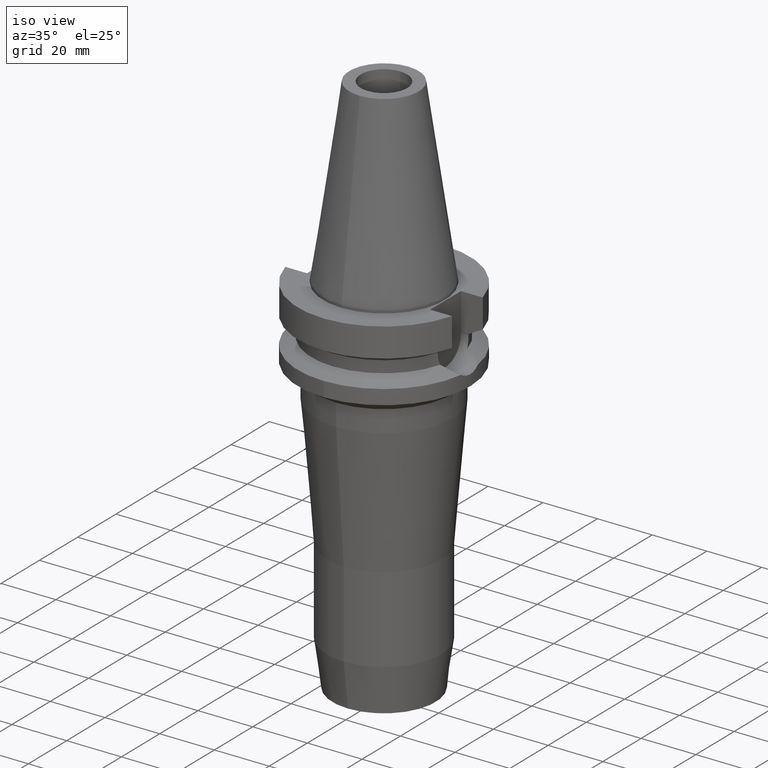
[diagram: clean part render]
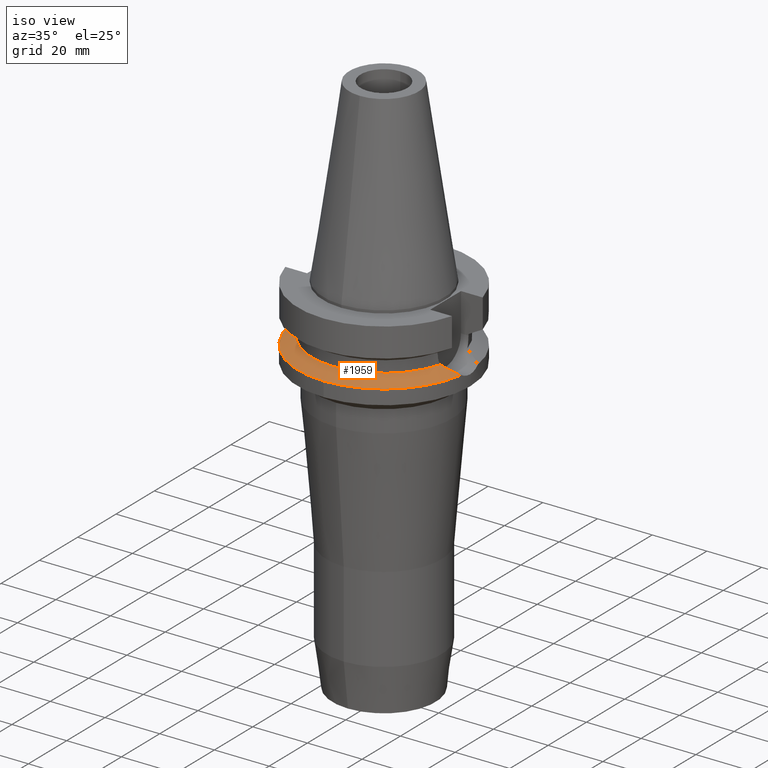
[diagram: same view with one face highlighted and labeled with its STEP entity id]
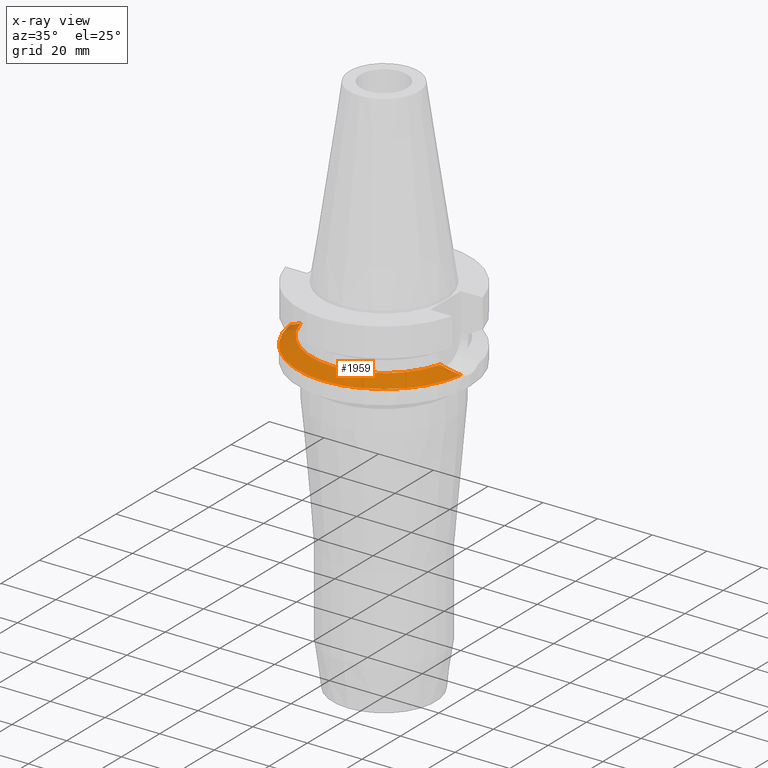
[diagram: x-ray of the same camera — body ghosted, the highlighted face saturated]
A machine part, iso view. The second image highlights one B-rep face of the part: STEP entity #1959.
The next image is the same camera in x-ray: the body ghosted, the highlighted face saturated — about 2% of this face is hidden behind the body in this view.
In plain terms, the highlighted conical surface has half-angle 60 deg.
Its self-contained STEP definition (entity closure, byte-faithful):
#614=CARTESIAN_POINT('',(3.117899877609E1,-4.485536235554E0,-2.163449434733E1));
#655=CARTESIAN_POINT('',(-3.117899877609E1,-4.485536235554E0,
-2.163449434733E1));
#656=CARTESIAN_POINT('',(-3.065533509123E1,-4.882823454226E0,
-2.136790032800E1));
#657=CARTESIAN_POINT('',(-2.952288629230E1,-5.594505613057E0,
-2.079091244787E1));
#658=CARTESIAN_POINT('',(-2.756007602918E1,-6.476150550726E0,
-1.978824243015E1));
#659=CARTESIAN_POINT('',(-2.621777781863E1,-6.909285433480E0,
-1.910018708431E1));
#660=CARTESIAN_POINT('',(-2.553175183775E1,-7.097862220093E0,
-1.874774300139E1));
#665=CARTESIAN_POINT('',(0.E0,0.E0,-1.874774300139E1));
#666=DIRECTION('',(0.E0,0.E0,1.E0));
#667=DIRECTION('',(-9.634623335001E-1,-2.678438573620E-1,0.E0));
#668=AXIS2_PLACEMENT_3D('',#665,#666,#667);
#673=CARTESIAN_POINT('',(0.E0,0.E0,-1.874774300139E1));
#674=DIRECTION('',(0.E0,0.E0,1.E0));
#675=DIRECTION('',(0.E0,-1.E0,0.E0));
#676=AXIS2_PLACEMENT_3D('',#673,#674,#675);
#681=CARTESIAN_POINT('',(2.553175183775E1,-7.097862220093E0,-1.874774300139E1));
#682=CARTESIAN_POINT('',(2.603956285209E1,-6.958273673945E0,-1.900862960369E1));
#683=CARTESIAN_POINT('',(2.700055425757E1,-6.657484525933E0,-1.950147995301E1));
#684=CARTESIAN_POINT('',(2.827170432654E1,-6.160842486502E0,-2.015179461276E1));
#685=CARTESIAN_POINT('',(2.938936778444E1,-5.627998384694E0,-2.072251289889E1));
#686=CARTESIAN_POINT('',(3.036114289079E1,-5.068922776318E0,-2.121801074992E1));
#687=CARTESIAN_POINT('',(3.092127714818E1,-4.681061554004E0,-2.150328982305E1));
#688=CARTESIAN_POINT('',(3.117899877609E1,-4.485536235554E0,-2.163449434733E1));
#693=CARTESIAN_POINT('',(0.E0,0.E0,-2.163449434733E1));
#694=DIRECTION('',(0.E0,0.E0,-1.E0));
#695=DIRECTION('',(9.898094849553E-1,-1.423979757319E-1,0.E0));
#696=AXIS2_PLACEMENT_3D('',#693,#694,#695);
#701=CARTESIAN_POINT('',(0.E0,0.E0,-2.163449434733E1));
#702=DIRECTION('',(0.E0,0.E0,-1.E0));
#703=DIRECTION('',(0.E0,-1.E0,0.E0));
#704=AXIS2_PLACEMENT_3D('',#701,#702,#703);
#1262=VERTEX_POINT('',#614);
#1265=CARTESIAN_POINT('',(0.E0,-3.15E1,-2.163449434733E1));
#1266=VERTEX_POINT('',#1265);
#1267=VERTEX_POINT('',#681);
#1278=VERTEX_POINT('',#655);
#1279=VERTEX_POINT('',#660);
#1280=CARTESIAN_POINT('',(0.E0,-2.65E1,-1.874774300139E1));
#1281=VERTEX_POINT('',#1280);
#1942=CARTESIAN_POINT('',(0.E0,0.E0,-2.019111867436E1));
#1943=DIRECTION('',(0.E0,0.E0,-1.E0));
#1944=DIRECTION('',(0.E0,-1.E0,0.E0));
#1945=AXIS2_PLACEMENT_3D('',#1942,#1943,#1944);
#1946=CONICAL_SURFACE('',#1945,2.9E1,6.E1);
#1948=ORIENTED_EDGE('',*,*,#1947,.T.);
#1950=ORIENTED_EDGE('',*,*,#1949,.T.);
#1952=ORIENTED_EDGE('',*,*,#1951,.T.);
#1953=ORIENTED_EDGE('',*,*,#1923,.T.);
#1954=ORIENTED_EDGE('',*,*,#1911,.T.);
#1956=ORIENTED_EDGE('',*,*,#1955,.T.);
#1957=EDGE_LOOP('',(#1948,#1950,#1952,#1953,#1954,#1956));
#1958=FACE_OUTER_BOUND('',#1957,.F.);
#661=B_SPLINE_CURVE_WITH_KNOTS('',3,(#655,#656,#657,#658,#659,#660),
.UNSPECIFIED.,.F.,.F.,(4,1,1,4),(0.E0,3.333333333333E-1,6.666666666667E-1,1.E0),
.UNSPECIFIED.);
#669=CIRCLE('',#668,2.65E1);
#677=CIRCLE('',#676,2.65E1);
#689=B_SPLINE_CURVE_WITH_KNOTS('',3,(#681,#682,#683,#684,#685,#686,#687,#688),
.UNSPECIFIED.,.F.,.F.,(4,1,1,1,1,4),(0.E0,2.E-1,4.E-1,6.E-1,8.E-1,1.E0),
.UNSPECIFIED.);
#697=CIRCLE('',#696,3.15E1);
#705=CIRCLE('',#704,3.15E1);
#1911=EDGE_CURVE('',#1262,#1266,#697,.T.);
#1923=EDGE_CURVE('',#1267,#1262,#689,.T.);
#1947=EDGE_CURVE('',#1278,#1279,#661,.T.);
#1949=EDGE_CURVE('',#1279,#1281,#669,.T.);
#1951=EDGE_CURVE('',#1281,#1267,#677,.T.);
#1955=EDGE_CURVE('',#1266,#1278,#705,.T.);
#1959=ADVANCED_FACE('',(#1958),#1946,.T.);